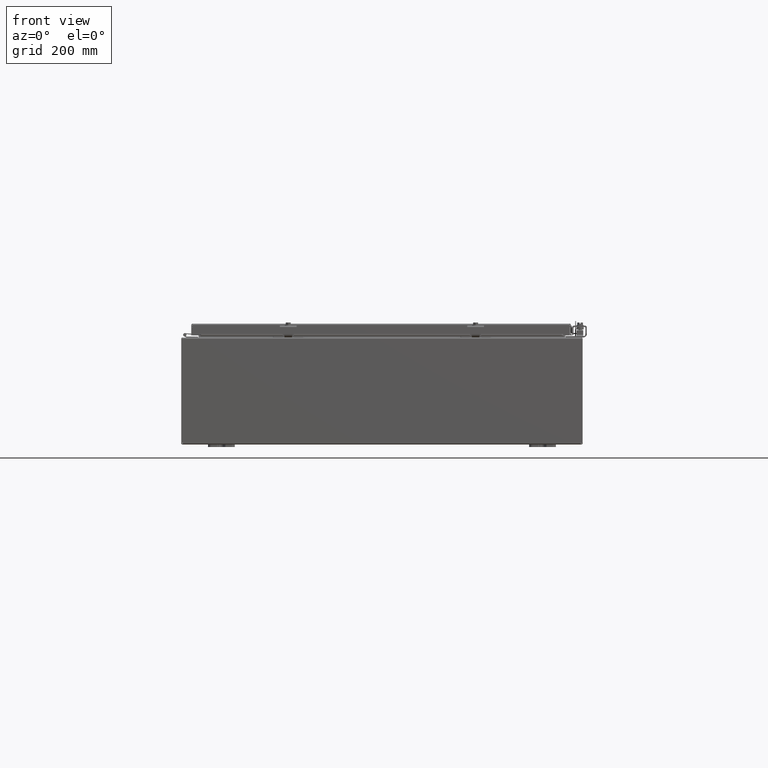
[diagram: clean part render]
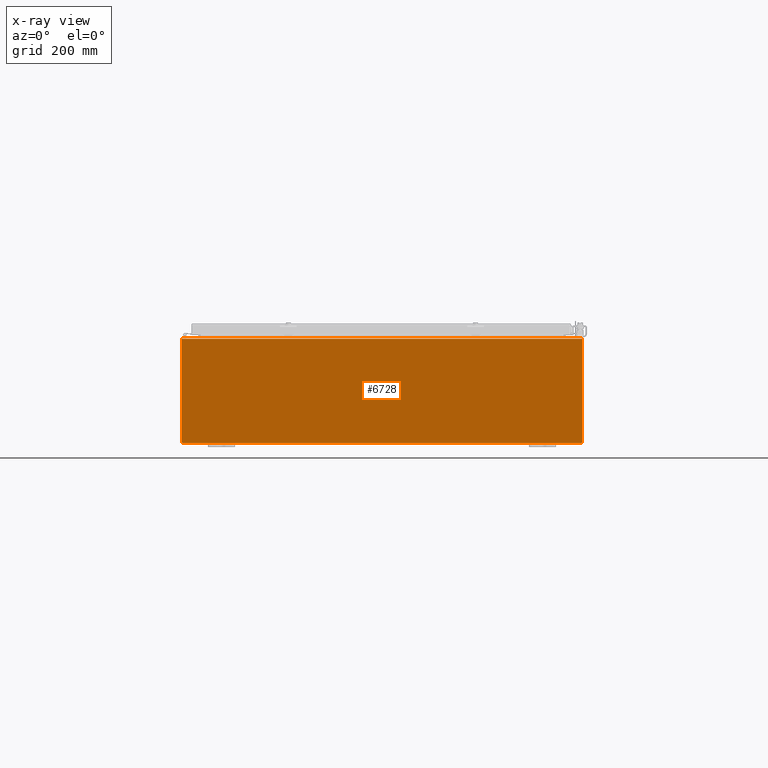
[diagram: x-ray — body ghosted, one internal face saturated and labeled with its STEP entity id]
A machine part, front view, then the same camera in x-ray: the body is ghosted and one INTERNAL B-rep face — a face not visible from any outside direction — is saturated and labeled: STEP entity #6728.
In plain terms, the highlighted planar face has unit normal (0, 1, 0).
Its self-contained STEP definition (entity closure, byte-faithful):
#25 = DIRECTION ( 'NONE',  ( 1.000000000000000000, 0.0000000000000000000, 0.0000000000000000000 ) ) ;
#3355 = DIRECTION ( 'NONE',  ( 0.0000000000000000000, -1.000000000000000000, 0.0000000000000000000 ) ) ;
#4821 = CARTESIAN_POINT ( 'NONE',  ( -14.96300000000000500, -20.92600000000000900, 0.1274501355917630200 ) ) ;
#5430 = VERTEX_POINT ( 'NONE', #39969 ) ;
#5616 = ORIENTED_EDGE ( 'NONE', *, *, #14675, .T. ) ;
#6142 = CARTESIAN_POINT ( 'NONE',  ( -14.96299999999999900, -20.92600000000004800, 7.894750000000004600 ) ) ;
#6599 = CARTESIAN_POINT ( 'NONE',  ( 14.91495145654399800, -20.92600000000004500, 7.894750000000001000 ) ) ;
#6728 = ADVANCED_FACE ( 'NONE', ( #38140 ), #15808, .T. ) ;
#7352 = CARTESIAN_POINT ( 'NONE',  ( -14.91495145654400100, -20.92600000000004800, 7.894750000000004600 ) ) ;
#11242 = EDGE_LOOP ( 'NONE', ( #30180, #36912, #27424, #27536, #19544, #5616, #53556, #46712 ) ) ;
#13885 = CARTESIAN_POINT ( 'NONE',  ( 14.96299999999999400, -20.92600000000000200, 0.1274501355917690100 ) ) ;
#14233 = DIRECTION ( 'NONE',  ( 0.0000000000000000000, 0.0000000000000000000, 1.000000000000000000 ) ) ;
#14675 = EDGE_CURVE ( 'NONE', #18549, #44250, #53541, .T. ) ;
#15808 = PLANE ( 'NONE',  #57088 ) ;
#17098 = CARTESIAN_POINT ( 'NONE',  ( -3.011278000000000300E-015, -20.92600000000002700, 4.009483078884576600 ) ) ;
#17307 = DIRECTION ( 'NONE',  ( -0.0000000000000000000, 1.000000000000000000, 0.0000000000000000000 ) ) ;
#17506 = DIRECTION ( 'NONE',  ( 1.000000000000000000, 0.0000000000000000000, 0.0000000000000000000 ) ) ;
#17715 = EDGE_CURVE ( 'NONE', #24315, #5430, #43702, .T. ) ;
#18549 = VERTEX_POINT ( 'NONE', #59337 ) ;
#19544 = ORIENTED_EDGE ( 'NONE', *, *, #39892, .T. ) ;
#21426 = CARTESIAN_POINT ( 'NONE',  ( 14.96299999999999400, -20.92600000000000500, 0.1274501355917690100 ) ) ;
#22655 = DIRECTION ( 'NONE',  ( 1.000000000000000000, 0.0000000000000000000, 0.0000000000000000000 ) ) ;
#23752 = AXIS2_PLACEMENT_3D ( 'NONE', #56896, #28101, #25 ) ;
#24315 = VERTEX_POINT ( 'NONE', #21426 ) ;
#25232 = EDGE_CURVE ( 'NONE', #52774, #54691, #40407, .T. ) ;
#25411 = LINE ( 'NONE', #26069, #36642 ) ;
#26069 = CARTESIAN_POINT ( 'NONE',  ( -14.96300000000000500, -20.92600000000000900, 0.1274501355917630200 ) ) ;
#26075 = EDGE_CURVE ( 'NONE', #54691, #5430, #42455, .T. ) ;
#26095 = LINE ( 'NONE', #56245, #38832 ) ;
#26437 = CARTESIAN_POINT ( 'NONE',  ( -14.91495145654399800, -20.92600000000004800, 7.894750000000004600 ) ) ;
#27411 = AXIS2_PLACEMENT_3D ( 'NONE', #31777, #3355, #36559 ) ;
#27424 = ORIENTED_EDGE ( 'NONE', *, *, #26075, .T. ) ;
#27536 = ORIENTED_EDGE ( 'NONE', *, *, #17715, .F. ) ;
#27680 = VECTOR ( 'NONE', #58179, 39.37007874015748100 ) ;
#28101 = DIRECTION ( 'NONE',  ( 0.0000000000000000000, -1.000000000000000000, 0.0000000000000000000 ) ) ;
#28965 = EDGE_CURVE ( 'NONE', #40506, #45431, #25411, .T. ) ;
#29271 = DIRECTION ( 'NONE',  ( 1.000000000000000000, 0.0000000000000000000, 0.0000000000000000000 ) ) ;
#29520 = CARTESIAN_POINT ( 'NONE',  ( 14.91495145654399800, -20.92600000000004800, 7.894749999999999300 ) ) ;
#30180 = ORIENTED_EDGE ( 'NONE', *, *, #52941, .T. ) ;
#31777 = CARTESIAN_POINT ( 'NONE',  ( -14.93789192111541900, -20.92600000000000900, 0.06210807888457600700 ) ) ;
#35731 = CARTESIAN_POINT ( 'NONE',  ( 14.88276683932436700, -20.92600000000000500, 0.1052499999999980100 ) ) ;
#35940 = DIRECTION ( 'NONE',  ( -1.000000000000000000, 0.0000000000000000000, 0.0000000000000000000 ) ) ;
#36559 = DIRECTION ( 'NONE',  ( 1.000000000000000000, 0.0000000000000000000, 0.0000000000000000000 ) ) ;
#36642 = VECTOR ( 'NONE', #54892, 39.37007874015748100 ) ;
#36912 = ORIENTED_EDGE ( 'NONE', *, *, #25232, .T. ) ;
#38140 = FACE_OUTER_BOUND ( 'NONE', #11242, .T. ) ;
#38832 = VECTOR ( 'NONE', #22655, 39.37007874015748100 ) ;
#39892 = EDGE_CURVE ( 'NONE', #24315, #18549, #50782, .T. ) ;
#39969 = CARTESIAN_POINT ( 'NONE',  ( 14.96299999999999900, -20.92600000000004800, 7.894749999999999300 ) ) ;
#40407 = LINE ( 'NONE', #7352, #27680 ) ;
#40506 = VERTEX_POINT ( 'NONE', #4821 ) ;
#42455 = LINE ( 'NONE', #29520, #52406 ) ;
#43702 = LINE ( 'NONE', #13885, #55069 ) ;
#44250 = VERTEX_POINT ( 'NONE', #58298 ) ;
#45431 = VERTEX_POINT ( 'NONE', #6142 ) ;
#46712 = ORIENTED_EDGE ( 'NONE', *, *, #28965, .T. ) ;
#47233 = EDGE_CURVE ( 'NONE', #44250, #40506, #54238, .T. ) ;
#50782 = CIRCLE ( 'NONE', #23752, 0.07000000000000007600 ) ;
#52406 = VECTOR ( 'NONE', #29271, 39.37007874015748100 ) ;
#52774 = VERTEX_POINT ( 'NONE', #26437 ) ;
#52941 = EDGE_CURVE ( 'NONE', #45431, #52774, #26095, .T. ) ;
#53541 = LINE ( 'NONE', #35731, #54969 ) ;
#53556 = ORIENTED_EDGE ( 'NONE', *, *, #47233, .T. ) ;
#54238 = CIRCLE ( 'NONE', #27411, 0.07000000000000007600 ) ;
#54691 = VERTEX_POINT ( 'NONE', #6599 ) ;
#54892 = DIRECTION ( 'NONE',  ( 0.0000000000000000000, 0.0000000000000000000, 1.000000000000000000 ) ) ;
#54969 = VECTOR ( 'NONE', #35940, 39.37007874015748100 ) ;
#55069 = VECTOR ( 'NONE', #14233, 39.37007874015748100 ) ;
#56245 = CARTESIAN_POINT ( 'NONE',  ( -14.96299999999999900, -20.92600000000004800, 7.894750000000004600 ) ) ;
#56896 = CARTESIAN_POINT ( 'NONE',  ( 14.93789192111541900, -20.92600000000000200, 0.06210807888457600700 ) ) ;
#57088 = AXIS2_PLACEMENT_3D ( 'NONE', #17098, #17307, #17506 ) ;
#58179 = DIRECTION ( 'NONE',  ( 1.000000000000000000, 0.0000000000000000000, 0.0000000000000000000 ) ) ;
#58298 = CARTESIAN_POINT ( 'NONE',  ( -14.88276683932436100, -20.92600000000000900, 0.1052499999999970300 ) ) ;
#59337 = CARTESIAN_POINT ( 'NONE',  ( 14.88276683932436500, -20.92600000000000200, 0.1052499999999995100 ) ) ;